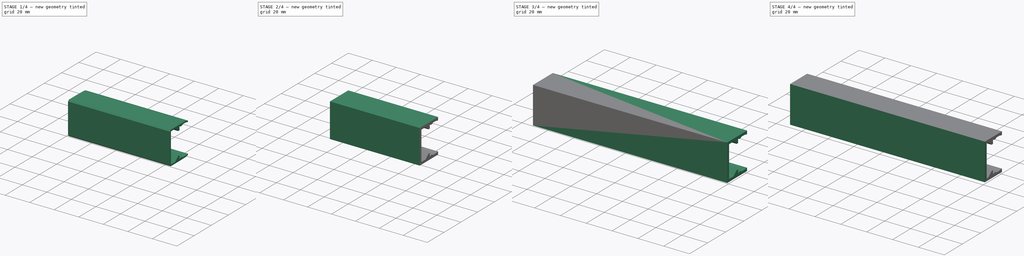
[diagram: build sequence overview — one tinted view per stage of 4, left to right]
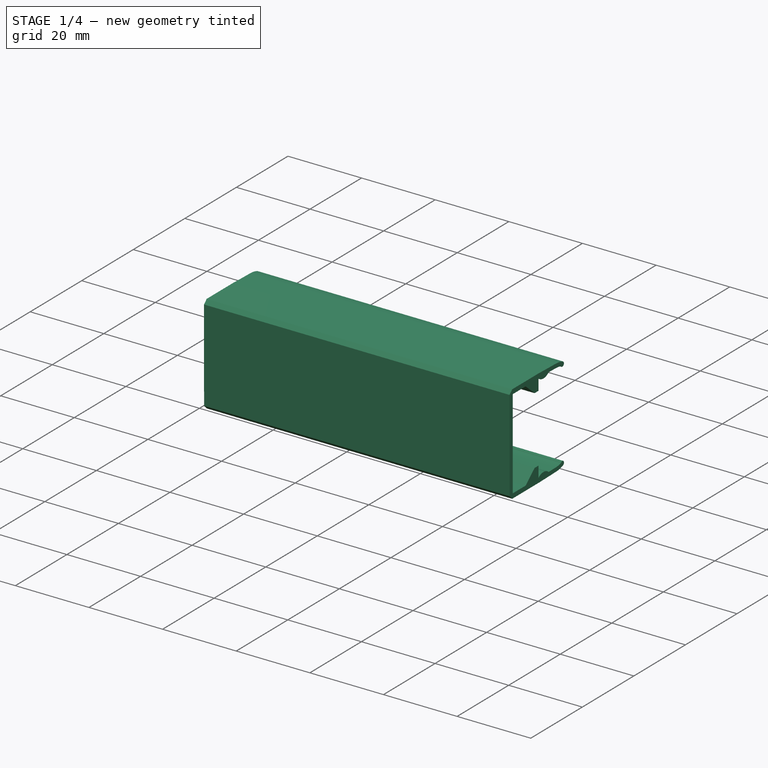
[diagram: stage 1 of 4 — iso view after this stage's code; geometry added in this stage tinted green]
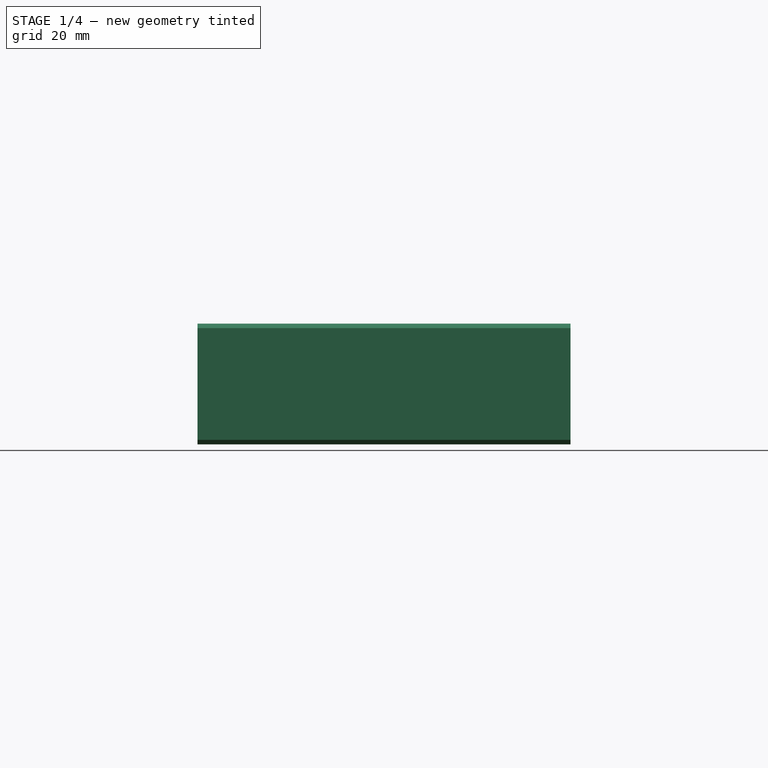
[diagram: stage 1 of 4 — front view after this stage's code; geometry added in this stage tinted green]
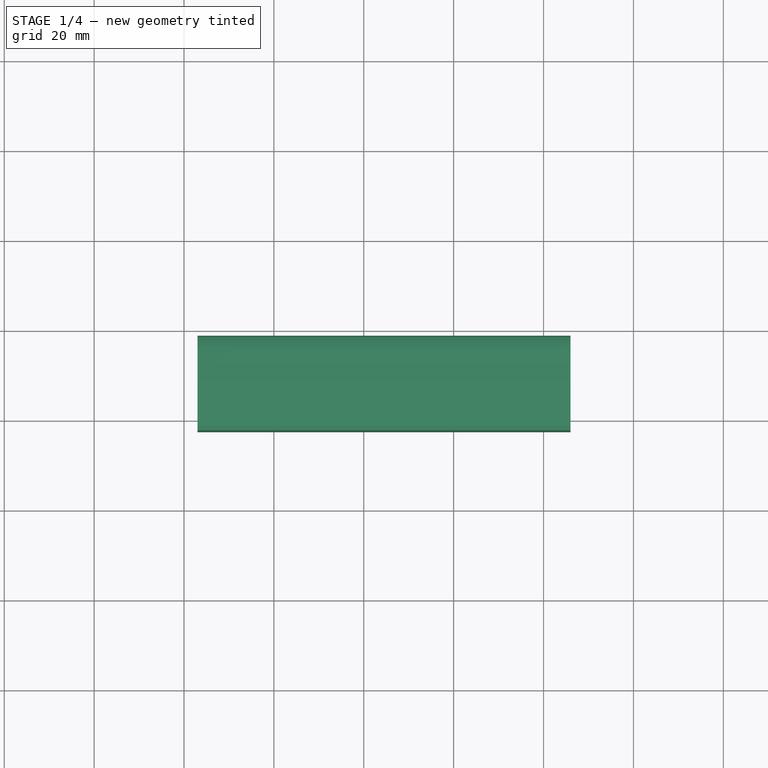
[diagram: stage 1 of 4 — top view after this stage's code; geometry added in this stage tinted green]
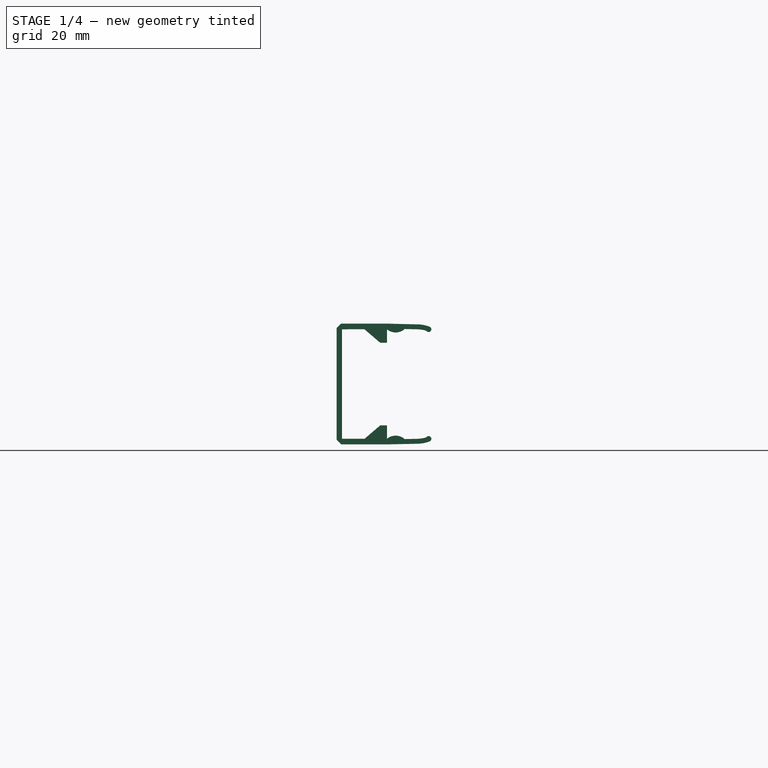
[diagram: stage 1 of 4 — right view after this stage's code; geometry added in this stage tinted green]
FCSTD DOCUMENT  (FreeCAD 1.0R38641 +468 (Git))
Label: k1_cable_cover_vertical_bottom
License: All rights reserved
LicenseURL: https://en.wikipedia.org/wiki/All_rights_reserved
objects: Sketcher::SketchObject×7, PartDesign::Pad×7, PartDesign::Pocket×5, Part::Feature×1, PartDesign::FeatureBase×1, PartDesign::Body×1
note: 54 computed .brp shape members not serialized (recipe doc carries the construction recipe); baked Part::Feature solids carry a one-line shape summary decoded from their .brp

FEATURE [Part::Feature] Part__Feature  label="step"
  shape: bbox 83 x 21.01 x 26.88 mm, 461 faces (baked)
FEATURE [PartDesign::FeatureBase] BaseFeature
  BaseFeature = -> Part__Feature
  Suppressed = false
FEATURE [Sketcher::SketchObject] Sketch
  ArcFitTolerance = 1e-06
  AttachmentSupport = -> [BaseFeature]
  ExternalGeometry = -> [BaseFeature]
  FullyConstrained = true
  MakeInternals = false
  MapMode = 5
  Placement = pos=(-194,0,0) rot=(0.57735,0.57735,0.57735;2.0944rad)
  sketch-geometry (4):
    g0: LineSegment StartX=-711.319 StartY=10.4515 StartZ=0 EndX=-707.568 EndY=10.3469 EndZ=0
    g1: ArcOfCircle CenterX=-709.411 CenterY=11.5663 CenterZ=0 NormalX=0 NormalY=0 NormalZ=1 AngleXU=0 Radius=2.21 StartAngle=3.67036 EndAngle=5.69867
    g2: LineSegment StartX=-711.314 StartY=-16.4252 StartZ=0 EndX=-707.562 EndY=-16.3466 EndZ=0
    g3: ArcOfCircle CenterX=-709.417 CenterY=-17.373 CenterZ=0 NormalX=0 NormalY=0 NormalZ=1 AngleXU=0 Radius=2.12 StartAngle=0.505428 EndAngle=2.67806
  constraints (10):
    c: Coincident(g0,g-3)
    c: Coincident(g0,g-4)
    c: Coincident(g1,g0)
    c: Coincident(g1,g0)
    c: Radius(g1) = 2.21
    c: Coincident(g2,g-5)
    c: Coincident(g2,g-6)
    c: Coincident(g3,g2)
    c: Coincident(g3,g2)
    c: Radius(g3) = 2.12
FEATURE [PartDesign::Pad] Pad
  BaseFeature = -> BaseFeature
  Direction = (1,0,0)
  Length = 10
  Length2 = 10
  Profile = -> Sketch
  ReferenceAxis = -> Sketch [N_Axis]
  Refine = true
  Suppressed = false
  Type = 3
  UpToFace = -> BaseFeature [Face9]
FEATURE [Sketcher::SketchObject] Sketch001
  ArcFitTolerance = 1e-06
  AttachmentSupport = -> [Pad]
  ExternalGeometry = -> [Pad]
  FullyConstrained = true
  MakeInternals = false
  MapMode = 5
  Placement = pos=(-277,0,0) rot=(0.57735,-0.57735,-0.57735;2.0944rad)
  sketch-geometry (8):
    g0: LineSegment StartX=702.263 StartY=9.91787 StartZ=0 EndX=701.902 EndY=9.79651 EndZ=0
    g1: LineSegment StartX=702.574 StartY=8.86233 StartZ=0 EndX=702.894 EndY=8.95357 EndZ=0
    g2: LineSegment StartX=702.263 StartY=9.91787 StartZ=0 EndX=702.894 EndY=8.95357 EndZ=0
    g3: LineSegment StartX=701.896 StartY=-15.7962 StartZ=0 EndX=702.258 EndY=-15.9176 EndZ=0
    g4: LineSegment StartX=702.574 StartY=-14.8639 StartZ=0 EndX=702.893 EndY=-14.9551 EndZ=0
    g5: LineSegment StartX=702.258 StartY=-15.9176 StartZ=0 EndX=702.893 EndY=-14.9551 EndZ=0
    g6: ArcOfCircle CenterX=702.05 CenterY=-15.1956 CenterZ=0 NormalX=0 NormalY=0 NormalZ=1 AngleXU=0 Radius=0.62 StartAngle=0.564671 EndAngle=4.46131
    g7: ArcOfCircle CenterX=702.051 CenterY=9.19476 CenterZ=0 NormalX=0 NormalY=0 NormalZ=1 AngleXU=0 Radius=0.62 StartAngle=1.81402 EndAngle=5.7173
  constraints (18):
    c: Coincident(g0,g-4)
    c: Coincident(g0,g-4)
    c: Coincident(g1,g-3)
    c: Coincident(g1,g-3)
    c: Coincident(g2,g0)
    c: Coincident(g2,g1)
    c: Coincident(g3,g-6)
    c: Coincident(g3,g-6)
    c: Coincident(g4,g-5)
    c: Coincident(g4,g-5)
    c: Coincident(g5,g3)
    c: Coincident(g5,g4)
    c: Coincident(g6,g4)
    c: Coincident(g6,g3)
    c: Radius(g6) = 0.62
    c: Coincident(g7,g0)
    c: Coincident(g7,g1)
    c: Radius(g7) = 0.62
FEATURE [PartDesign::Pad] Pad001
  BaseFeature = -> Pad
  Direction = (-1,0,0)
  Length = 10
  Length2 = 10
  Profile = -> Sketch001
  ReferenceAxis = -> Sketch001 [N_Axis]
  Refine = true
  Suppressed = false
  Type = 3
  UpToFace = -> Pad [Face269]
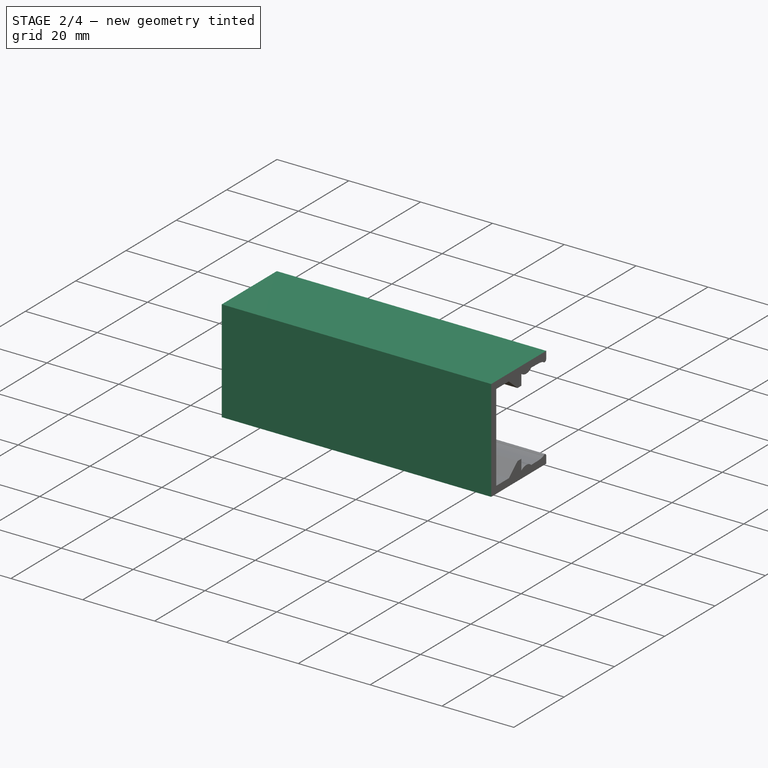
[diagram: stage 2 of 4 — iso view after this stage's code; geometry added in this stage tinted green]
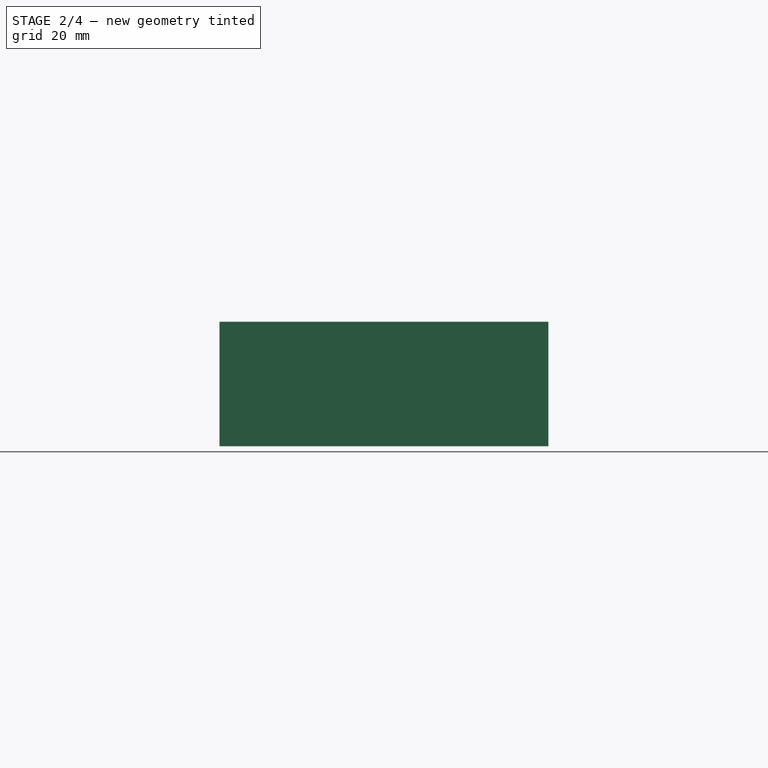
[diagram: stage 2 of 4 — front view after this stage's code; geometry added in this stage tinted green]
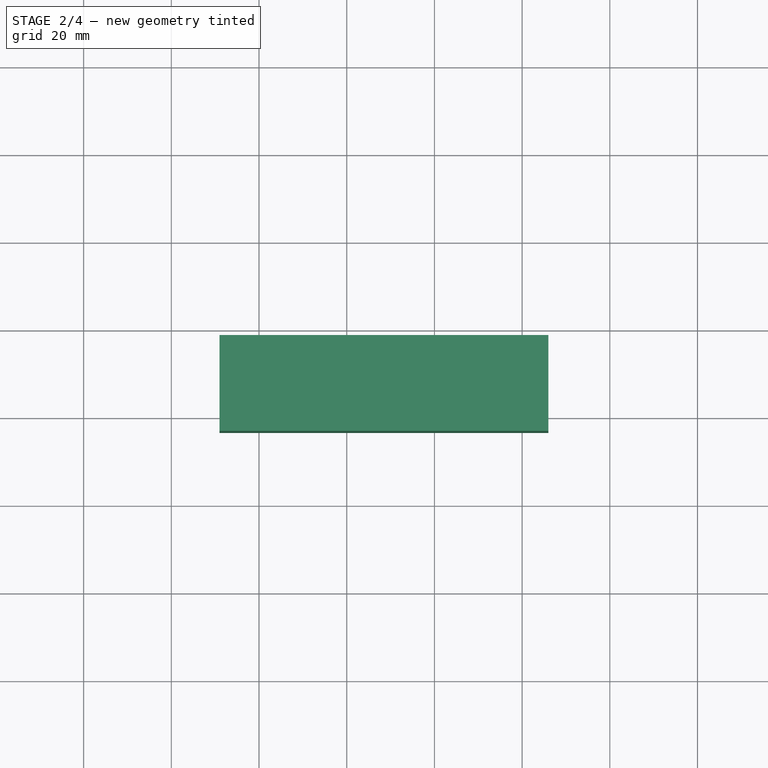
[diagram: stage 2 of 4 — top view after this stage's code; geometry added in this stage tinted green]
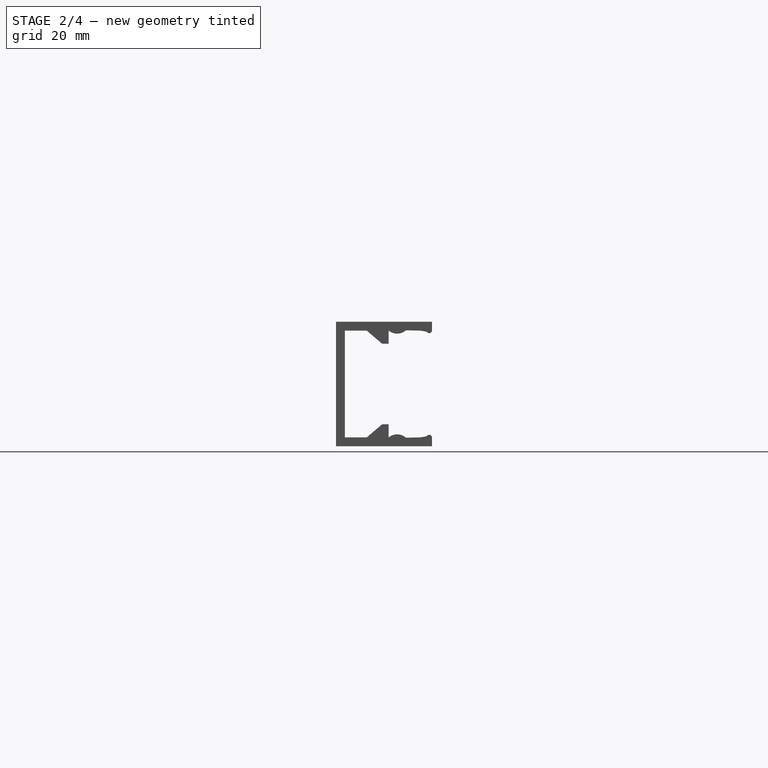
[diagram: stage 2 of 4 — right view after this stage's code; geometry added in this stage tinted green]
FEATURE [Sketcher::SketchObject] Sketch002
  ArcFitTolerance = 1e-06
  AttachmentSupport = -> [Pad001]
  ExternalGeometry = -> [Pad001]
  FullyConstrained = true
  MakeInternals = false
  MapMode = 5
  Placement = pos=(-194,-9.51e-14,0) rot=(0.57735,0.57735,0.57735;2.0944rad)
  sketch-geometry (8):
    g0: LineSegment StartX=-701.431 StartY=9.19476 StartZ=0 EndX=-701.431 EndY=11.1948 EndZ=0
    g1: LineSegment StartX=-701.43 StartY=-15.1956 StartZ=0 EndX=-701.43 EndY=-17.1956 EndZ=0
    g2: LineSegment StartX=-701.431 StartY=11.1948 StartZ=0 EndX=-722.505 EndY=11.1948 EndZ=0
    g3: LineSegment StartX=-701.43 StartY=-17.1956 StartZ=0 EndX=-722.505 EndY=-17.1956 EndZ=0
    g4: LineSegment StartX=-722.505 StartY=-17.1956 StartZ=0 EndX=-722.505 EndY=11.1948 EndZ=0
    g5: LineSegment StartX=-701.431 StartY=9.19476 StartZ=0 EndX=-721.578 EndY=9.91231 EndZ=0
    g6: LineSegment StartX=-701.43 StartY=-15.1956 StartZ=0 EndX=-721.578 EndY=-15.8877 EndZ=0
    g7: LineSegment StartX=-721.578 StartY=9.91231 StartZ=0 EndX=-721.578 EndY=-15.8877 EndZ=0
  constraints (22):
    c: Vertical(g0)
    c: Vertical(g1)
    c: Coincident(g2,g0)
    c: Horizontal(g2)
    c: Coincident(g3,g1)
    c: Horizontal(g3)
    c: Coincident(g4,g3)
    c: Coincident(g4,g2)
    c: Vertical(g4)
    c: PointOnObject(g-5,g4)
    c: Tangent(g1,g-4) = 1.5708
    c: Tangent(g0,g-3) = -1.5708
    c: Equal(g0,g1)
    c: Coincident(g5,g0)
    c: Coincident(g6,g1)
    c: Coincident(g7,g5)
    c: Coincident(g7,g6)
    c: Vertical(g7)
    c: Equal(g6,g5)
    c: DistanceY(g7,g7) = 25.8
    c: Distance(g0,g0) = 2
    c: Distance(g5,g5) = 20.16
FEATURE [PartDesign::Pad] Pad002
  BaseFeature = -> Pad001
  Direction = (1,0,0)
  Length = 10
  Length2 = 10
  Profile = -> Sketch002
  ReferenceAxis = -> Sketch002 [N_Axis]
  Refine = true
  Suppressed = false
  Type = 3
  UpToFace = -> Pad001 [Face121]
FEATURE [Sketcher::SketchObject] Sketch003
  ArcFitTolerance = 1e-06
  AttachmentSupport = -> [Pad002]
  ExternalGeometry = -> [Pad002]
  FullyConstrained = true
  MakeInternals = false
  MapMode = 5
  Placement = pos=(-277,7.811e-13,0) rot=(-0.57735,0.57735,0.57735;4.18879rad)
  constraints (2):
    c: Distance(g-3,g-4) = 2.01494
    c: Distance(g-3,g-5) = 1.20538
FEATURE [PartDesign::Pad] Pad003
  BaseFeature = -> Pad002
  Direction = (0,-1,0)
  Length = 0.8
  Length2 = 10
  Profile = -> Pad002 [Face92]
  Refine = true
  Suppressed = false
  Type = 0
FEATURE [PartDesign::Pocket] Pocket
  BaseFeature = -> Pad003
  Direction = (1,-2.6e-15,0)
  Length = 8
  Length2 = 5
  Profile = -> Pad003 [Face88]
  Refine = true
  Suppressed = false
  Type = 0
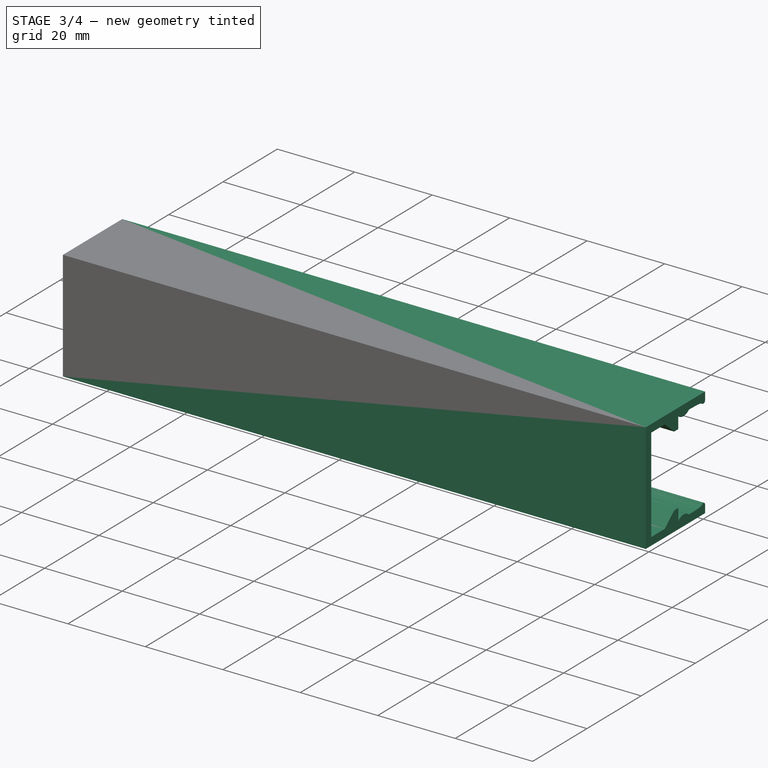
[diagram: stage 3 of 4 — iso view after this stage's code; geometry added in this stage tinted green]
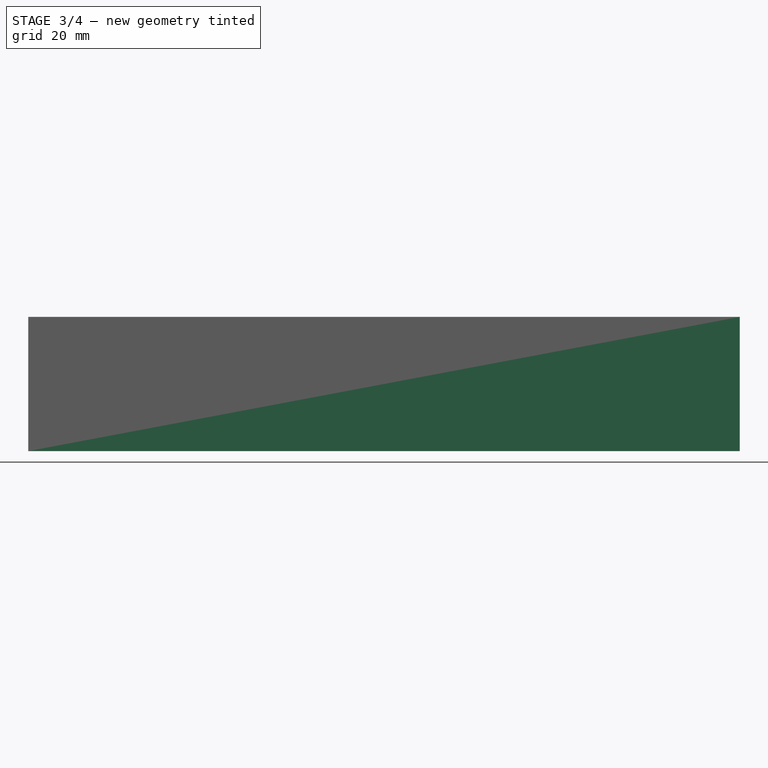
[diagram: stage 3 of 4 — front view after this stage's code; geometry added in this stage tinted green]
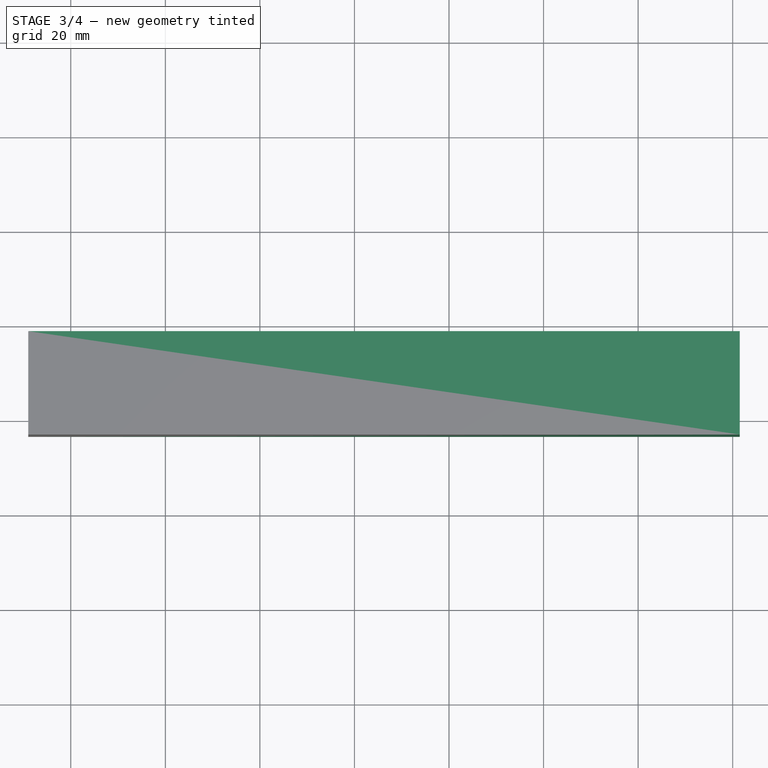
[diagram: stage 3 of 4 — top view after this stage's code; geometry added in this stage tinted green]
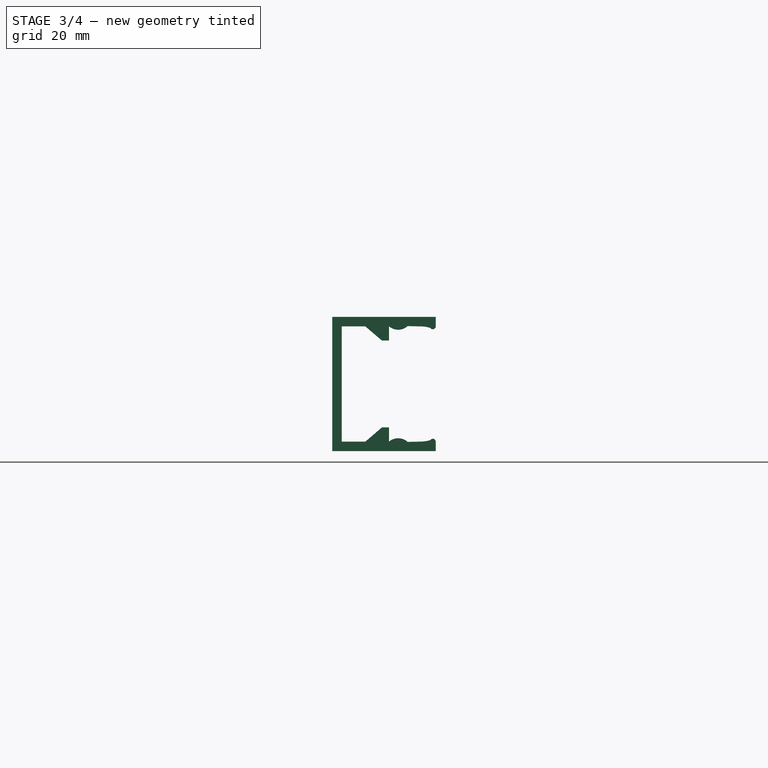
[diagram: stage 3 of 4 — right view after this stage's code; geometry added in this stage tinted green]
FEATURE [Sketcher::SketchObject] Sketch004
  ArcFitTolerance = 1e-06
  AttachmentSupport = -> [Pocket]
  ExternalGeometry = -> [Pocket]
  FullyConstrained = true
  MakeInternals = false
  MapMode = 5
  Placement = pos=(-269,6.94e-13,0) rot=(-0.57735,0.57735,0.57735;4.18879rad)
  sketch-geometry (4):
    g0: LineSegment StartX=711.314 StartY=12.8707 StartZ=0 EndX=700.094 EndY=12.8707 EndZ=0
    g1: LineSegment StartX=700.094 StartY=12.8707 StartZ=0 EndX=700.094 EndY=6.19072 EndZ=0
    g2: LineSegment StartX=700.094 StartY=6.19072 StartZ=0 EndX=711.314 EndY=6.19072 EndZ=0
    g3: LineSegment StartX=711.314 StartY=6.19072 StartZ=0 EndX=711.314 EndY=12.8707 EndZ=0
  constraints (11):
    c: Coincident(g0,g1)
    c: Coincident(g1,g2)
    c: Coincident(g2,g3)
    c: Coincident(g3,g0)
    c: Horizontal(g0)
    c: Horizontal(g2)
    c: Vertical(g1)
    c: Vertical(g3)
    c: Distance(g1,g1) = 6.68
    c: Distance(g0,g0) = 11.22
    c: Coincident(g2,g-3)
FEATURE [PartDesign::Pocket] Pocket001
  BaseFeature = -> Pocket
  Direction = (1,-2.7e-15,0)
  Length = 17.48
  Length2 = 5
  Profile = -> Sketch004
  ReferenceAxis = -> Sketch004 [N_Axis]
  Refine = true
  Suppressed = false
  Type = 0
FEATURE [PartDesign::Pad] Pad004
  BaseFeature = -> Pocket001
  Direction = (-1,0,0)
  Length = 10
  Length2 = 10
  Profile = -> Pocket001 [Face4]
  Refine = true
  Suppressed = false
  Type = 3
  UpToFace = -> Pocket001 [Face90]
FEATURE [PartDesign::Pad] Pad005
  BaseFeature = -> Pad004
  Direction = (1,-1.3e-15,0)
  Length = 75.5
  Length2 = 10
  Profile = -> Pad004 [Face1]
  Refine = true
  Suppressed = false
  Type = 0
FEATURE [Sketcher::SketchObject] Sketch005
  ArcFitTolerance = 1e-06
  AttachmentSupport = -> [Pad005]
  ExternalGeometry = -> [Pad005]
  FullyConstrained = true
  MakeInternals = false
  MapMode = 5
  Placement = pos=(-5.482e-13,-721.3,0) rot=(0,0.707107,0.707107;3.14159rad)
  sketch-geometry (4):
    g0: LineSegment StartX=269 StartY=-17.1956 StartZ=0 EndX=269 EndY=-11.6756 EndZ=0
    g1: LineSegment StartX=269 StartY=-11.6756 StartZ=0 EndX=254 EndY=-11.6756 EndZ=0
    g2: LineSegment StartX=254 StartY=-11.6756 StartZ=0 EndX=254 EndY=-17.1956 EndZ=0
    g3: LineSegment StartX=254 StartY=-17.1956 StartZ=0 EndX=269 EndY=-17.1956 EndZ=0
  constraints (11):
    c: Coincident(g0,g1)
    c: Coincident(g1,g2)
    c: Coincident(g2,g3)
    c: Coincident(g3,g0)
    c: Vertical(g0)
    c: Vertical(g2)
    c: Horizontal(g1)
    c: Horizontal(g3)
    c: Coincident(g0,g-3)
    c: Distance(g1,g1) = 15
    c: Distance(g2,g2) = 5.52
FEATURE [PartDesign::Pocket] Pocket002
  BaseFeature = -> Pad005
  Direction = (0,-1,2e-16)
  Length = 5
  Length2 = 5
  Profile = -> Sketch005
  ReferenceAxis = -> Sketch005 [N_Axis]
  Refine = true
  Reversed = true
  Suppressed = false
  Type = 1
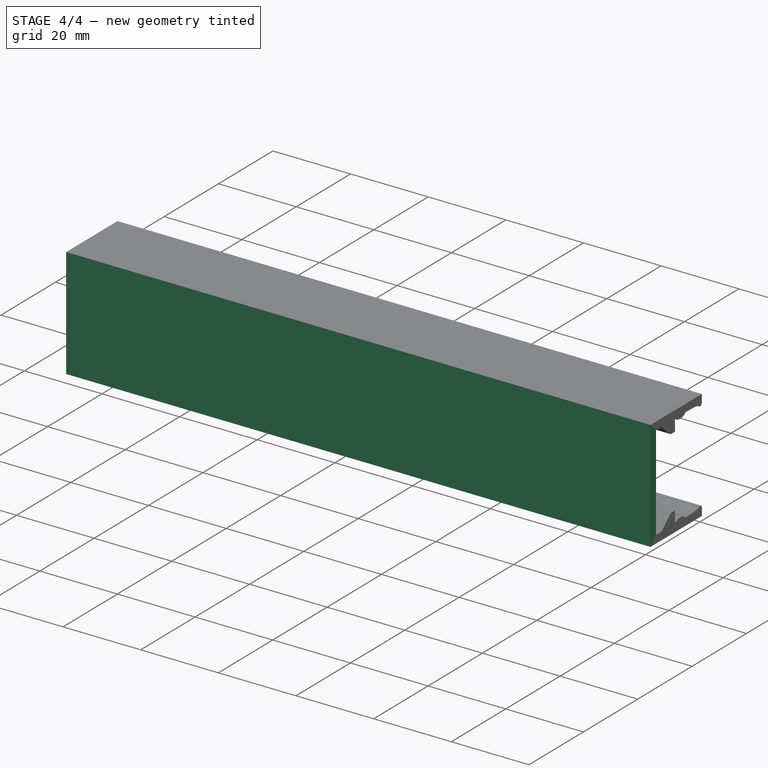
[diagram: stage 4 of 4 — iso view after this stage's code; geometry added in this stage tinted green]
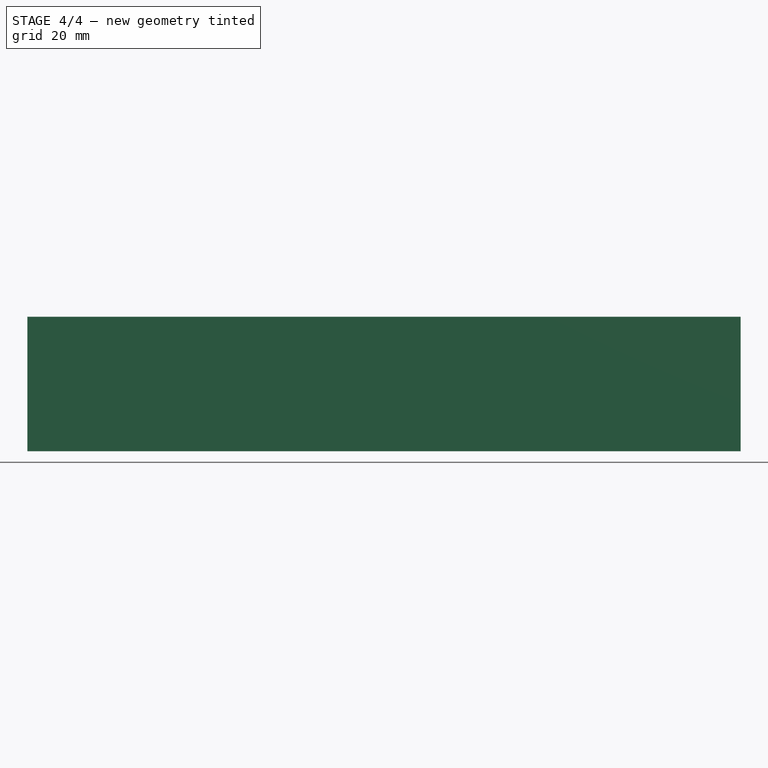
[diagram: stage 4 of 4 — front view after this stage's code; geometry added in this stage tinted green]
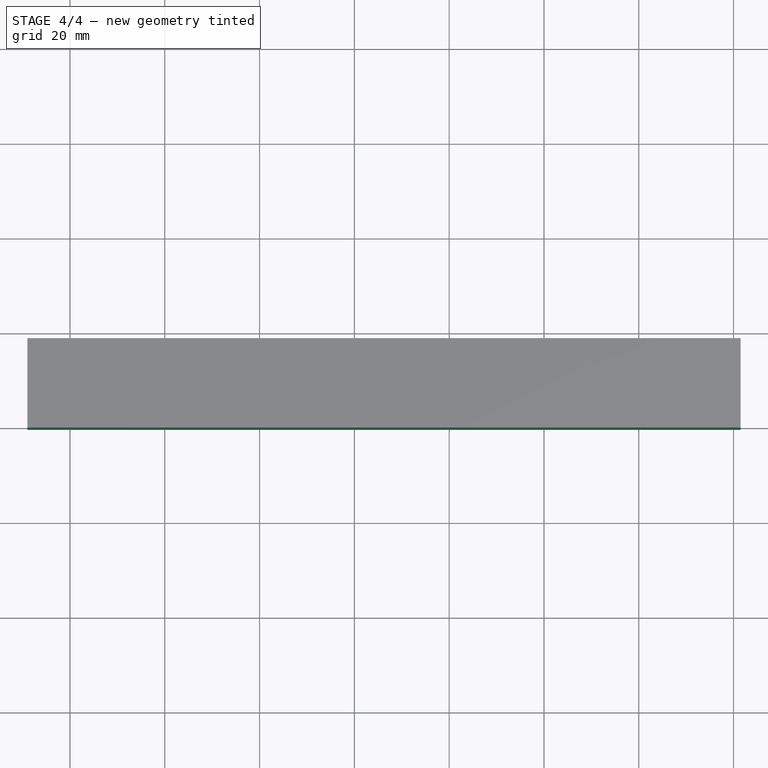
[diagram: stage 4 of 4 — top view after this stage's code; geometry added in this stage tinted green]
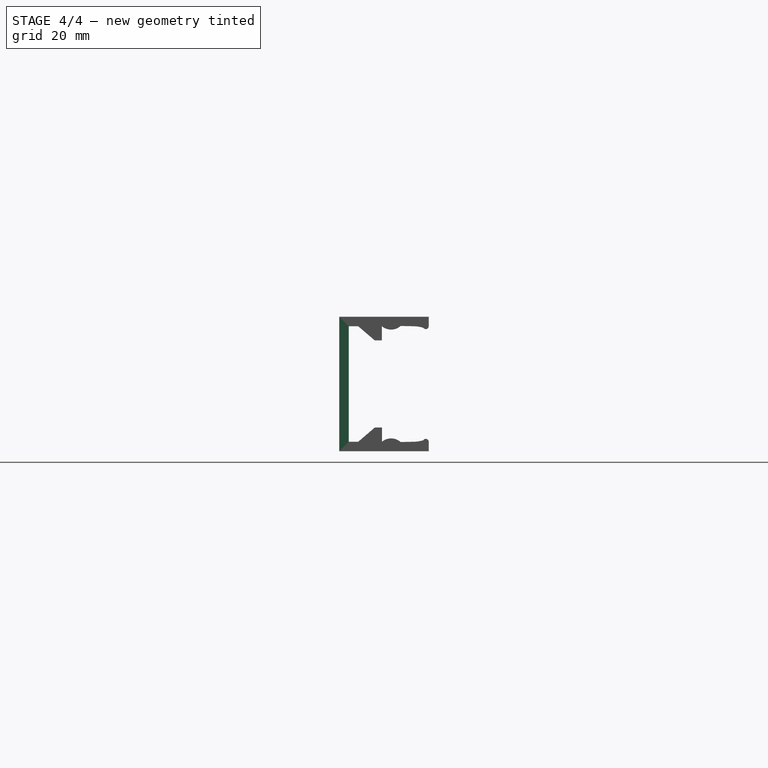
[diagram: stage 4 of 4 — right view after this stage's code; geometry added in this stage tinted green]
FEATURE [Sketcher::SketchObject] Sketch006
  ArcFitTolerance = 1e-06
  AttachmentSupport = -> [Pocket002]
  ExternalGeometry = -> [Pocket002]
  FullyConstrained = true
  MakeInternals = false
  MapMode = 5
  Placement = pos=(-5.406e-13,-711.3,0) rot=(0,0.707107,0.707107;3.14159rad)
  sketch-geometry (4):
    g0: LineSegment StartX=140.5 StartY=-12.1811 StartZ=0 EndX=140.5 EndY=-25.7111 EndZ=0
    g1: LineSegment StartX=140.5 StartY=-25.7111 StartZ=0 EndX=160.5 EndY=-25.7111 EndZ=0
    g2: LineSegment StartX=160.5 StartY=-25.7111 StartZ=0 EndX=160.5 EndY=-12.1811 EndZ=0
    g3: LineSegment StartX=160.5 StartY=-12.1811 StartZ=0 EndX=140.5 EndY=-12.1811 EndZ=0
  constraints (12):
    c: Coincident(g0,g1)
    c: Coincident(g1,g2)
    c: Coincident(g2,g3)
    c: Coincident(g3,g0)
    c: Vertical(g0)
    c: Vertical(g2)
    c: Horizontal(g1)
    c: Horizontal(g3)
    c: PointOnObject(g0,g-4)
    c: Distance(g1,g1) = 20
    c: Distance(g2,g2) = 13.53
    c: Distance(g-4,g0) = 22
FEATURE [PartDesign::Pocket] Pocket003
  BaseFeature = -> Pocket002
  Direction = (0,-1,2e-16)
  Length = 15
  Length2 = 5
  Profile = -> Sketch006
  ReferenceAxis = -> Sketch006 [N_Axis]
  Refine = true
  Reversed = true
  Suppressed = false
  Type = 0
FEATURE [PartDesign::Pad] Pad006
  BaseFeature = -> Pocket003
  Direction = (-5e-16,-1,0)
  Length = 5
  Length2 = 10
  Profile = -> Pocket003 [Face46]
  Refine = true
  Reversed = true
  Suppressed = false
  Type = 0
FEATURE [PartDesign::Pocket] Pocket004
  BaseFeature = -> Pad006
  Direction = (5e-16,1,0)
  Length = 3
  Length2 = 5
  Profile = -> Pad006 [Face131]
  Refine = true
  Suppressed = false
  Type = 0
FEATURE [PartDesign::Body] Body  label="k1_cable_cover_vertical_bottom"
  AllowCompound = false
  BaseFeature = -> Part__Feature
  Group = -> [BaseFeature,Sketch,Pad,Sketch001,Pad001,Sketch002,Pad002,Sketch003,Pad003,Pocket,Sketch004,Pocket001,Pad004,Pad005,Sketch005,Pocket002,Sketch006,Pocket003,Pad006,Pocket004]
  Origin = -> Origin
  Placement = pos=(269,724,17) rot=(0,0,1;0rad)
  Tip = -> Pocket004
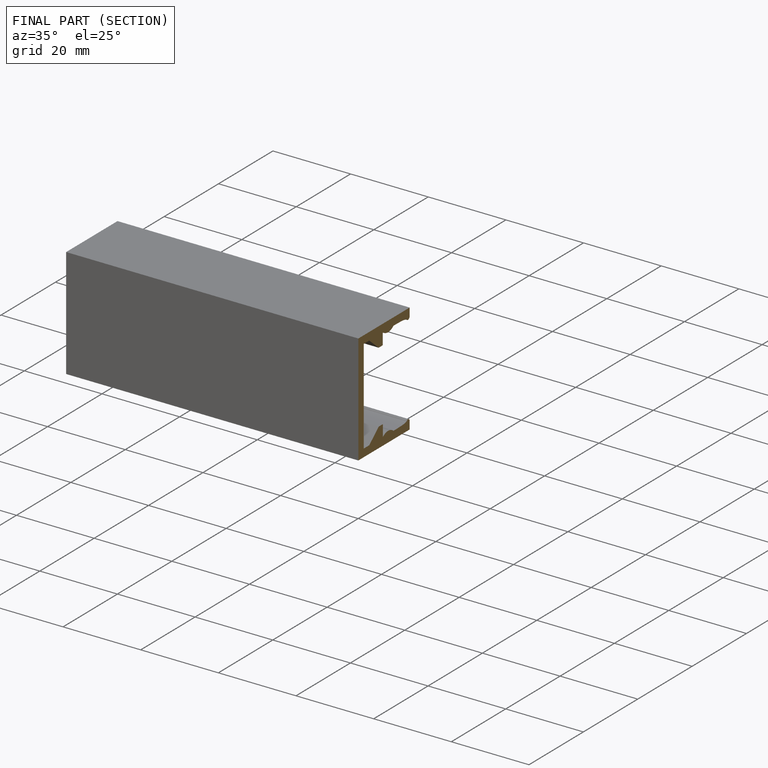
[diagram: finished part — half-section view (interior)]
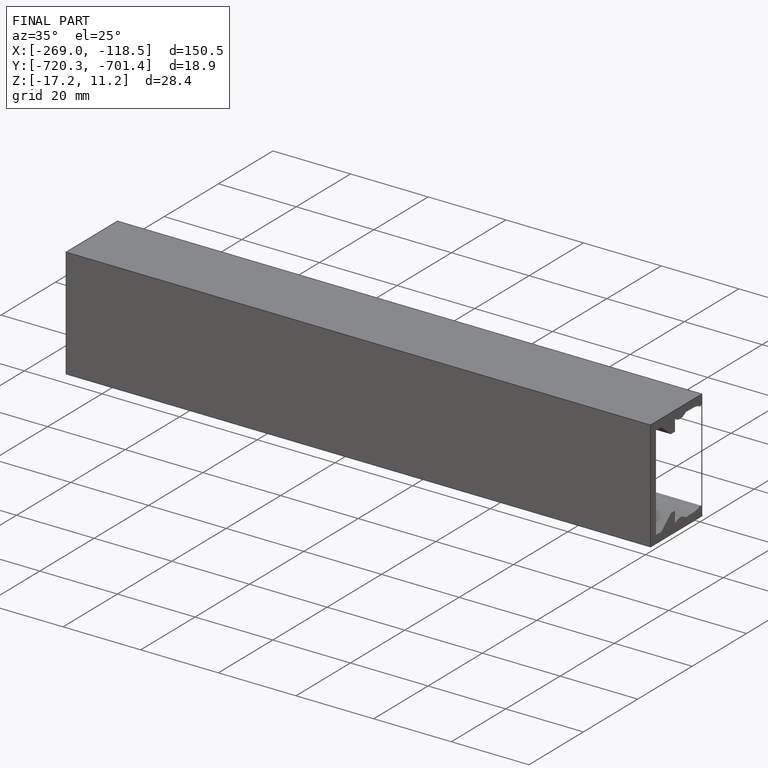
[diagram: finished part — iso view with bounding-box wireframe]
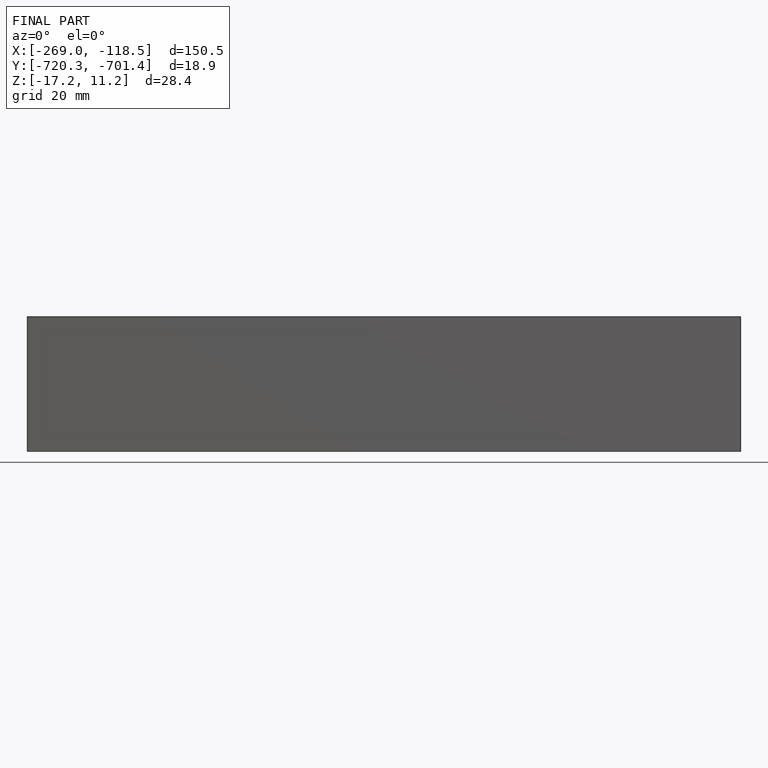
[diagram: finished part — front view with bounding-box wireframe]
